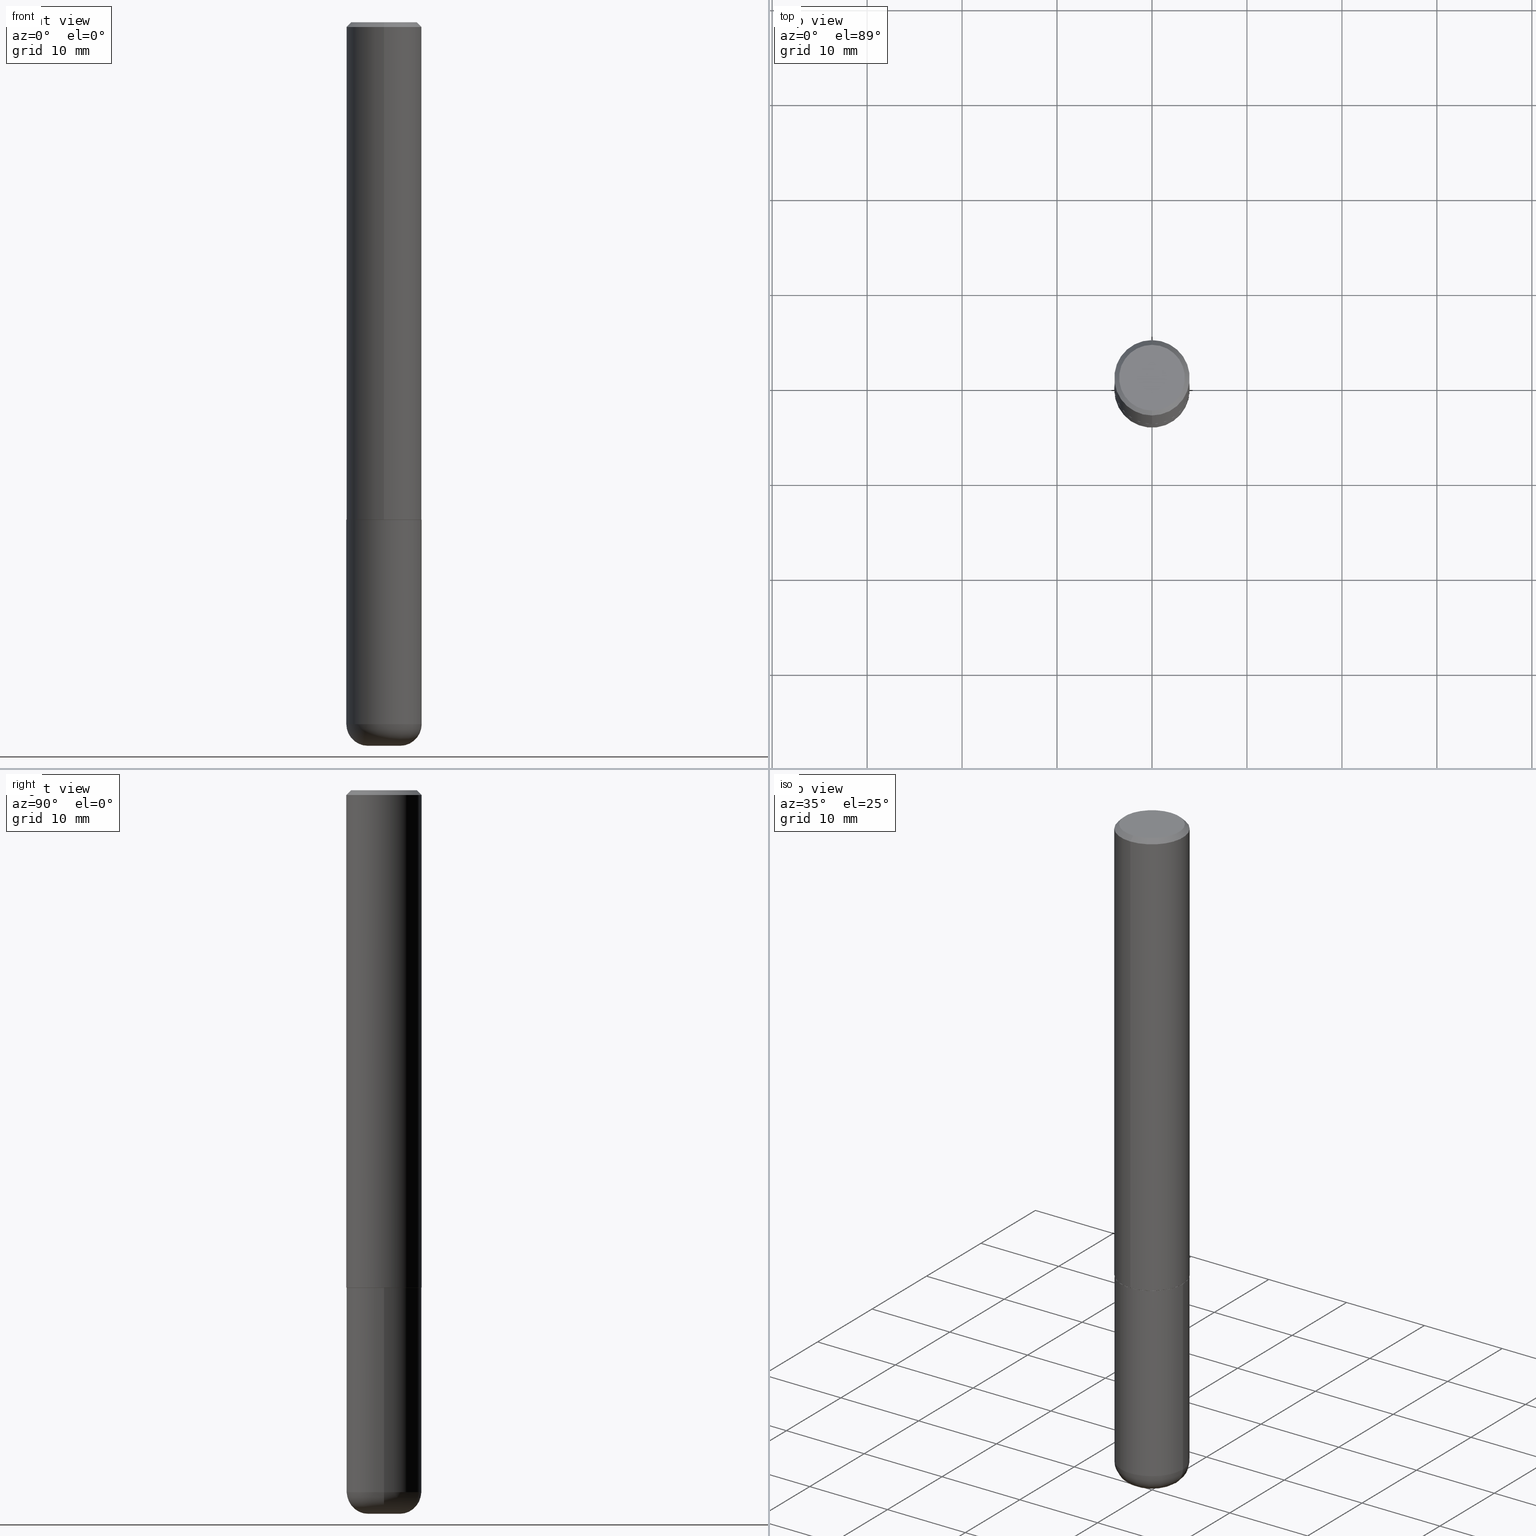
[diagram: canonical four-view strip — front | top / right | iso, engineering-drawing reading convention]
A machine part, canonical four-view strip (front | top / right | iso — engineering-drawing reading convention). The complete STEP part file that produces these views, byte-faithful:
ISO-10303-21;
HEADER;
FILE_DESCRIPTION (( 'STEP AP203' ),
    '1' );
FILE_NAME ('37467.STEP',
    '2024-03-02T02:02:21',
    ( '' ),
    ( '' ),
    'SwSTEP 2.0',
    'SolidWorks 2023',
    '' );
FILE_SCHEMA (( 'CONFIG_CONTROL_DESIGN' ));
ENDSEC;

DATA;
#1 = CC_DESIGN_DATE_AND_TIME_ASSIGNMENT ( #271, #44, ( #84 ) ) ;
#2 = AXIS2_PLACEMENT_3D ( 'NONE', #264, #302, #104 ) ;
#3 = DIRECTION ( 'NONE',  ( 1.000000000000000000, -6.982962677686265133E-15, 4.883557194083112901E-29 ) ) ;
#4 = DIRECTION ( 'NONE',  ( -2.445468806185136877E-29, 3.491481338843145188E-15, 1.000000000000000000 ) ) ;
#5 = ORIENTED_EDGE ( 'NONE', *, *, #31, .T. ) ;
#6 = DATE_AND_TIME ( #263, #141 ) ;
#7 = ORIENTED_EDGE ( 'NONE', *, *, #91, .F. ) ;
#8 = COORDINATED_UNIVERSAL_TIME_OFFSET ( 5, 0, .BEHIND. ) ;
#9 = DIRECTION ( 'NONE',  ( -2.445176063107630933E-29, 3.491900563592034843E-15, 1.000000000000000000 ) ) ;
#10 = CIRCLE ( 'NONE', #243, 0.06625000000000001721 ) ;
#11 = CARTESIAN_POINT ( 'NONE',  ( -0.06625000000000001721, -9.526848562748384337E-15, -2.999999999999999556 ) ) ;
#12 = CALENDAR_DATE ( 2024, 1, 3 ) ;
#13 = APPROVAL ( #130, 'UNSPECIFIED' ) ;
#14 = AXIS2_PLACEMENT_3D ( 'NONE', #269, #326, #32 ) ;
#15 = AXIS2_PLACEMENT_3D ( 'NONE', #43, #408, #216 ) ;
#16 = EDGE_CURVE ( 'NONE', #214, #121, #139, .T. ) ;
#17 = FACE_OUTER_BOUND ( 'NONE', #267, .T. ) ;
#18 = DIRECTION ( 'NONE',  ( -6.982962677686265922E-15, -1.000000000000000000, 3.491900563592034843E-15 ) ) ;
#19 = CLOSED_SHELL ( 'NONE', ( #206, #119, #395, #174, #317, #165 ) ) ;
#20 = DIRECTION ( 'NONE',  ( -4.937700262164378437E-15, -0.7071067811865208164, 0.7071067811865739960 ) ) ;
#21 = EDGE_LOOP ( 'NONE', ( #386, #348, #312, #257 ) ) ;
#22 = CYLINDRICAL_SURFACE ( 'NONE', #265, 0.1562500000000001388 ) ;
#23 = ORIENTED_EDGE ( 'NONE', *, *, #107, .T. ) ;
#24 = CARTESIAN_POINT ( 'NONE',  ( 5.043779412756844791E-29, -7.201180261363988578E-15, -2.062500000000000000 ) ) ;
#25 = ORIENTED_EDGE ( 'NONE', *, *, #405, .T. ) ;
#26 = DIRECTION ( 'NONE',  ( -2.445176063107630933E-29, 3.491900563592034843E-15, 1.000000000000000000 ) ) ;
#27 = VECTOR ( 'NONE', #20, 39.37007874015748854 ) ;
#28 = ORIENTED_EDGE ( 'NONE', *, *, #47, .T. ) ;
#29 = PLANE ( 'NONE',  #62 ) ;
#30 = VERTEX_POINT ( 'NONE', #103 ) ;
#31 = EDGE_CURVE ( 'NONE', #315, #384, #402, .T. ) ;
#32 = DIRECTION ( 'NONE',  ( 1.000000000000000000, -6.982962677686269077E-15, 0.000000000000000000 ) ) ;
#33 = DIRECTION ( 'NONE',  ( 2.438088387897960049E-29, -3.491481338843145188E-15, -1.000000000000000000 ) ) ;
#34 = EDGE_CURVE ( 'NONE', #30, #219, #293, .T. ) ;
#35 = DIRECTION ( 'NONE',  ( -1.000000000000000000, 6.982962677686265922E-15, -4.876176775795935793E-29 ) ) ;
#36 = CARTESIAN_POINT ( 'NONE',  ( 4.890352126215269679E-31, -6.983801127184080238E-17, -0.02000000000000003511 ) ) ;
#37 = PERSON ( 'UNSPECIFIED', 'UNSPECIFIED', 'UNSPECIFIED', ('UNSPECIFIED'), ('UNSPECIFIED'), ('UNSPECIFIED') ) ;
#38 = DATE_AND_TIME ( #368, #223 ) ;
#39 = CARTESIAN_POINT ( 'NONE',  ( -1.091087918388430659E-15, -0.1562500000000074940, -2.061499999999999666 ) ) ;
#40 = COORDINATED_UNIVERSAL_TIME_OFFSET ( 5, 0, .BEHIND. ) ;
#41 = CARTESIAN_POINT ( 'NONE',  ( 2.461313932198454415E-28, 1.426682083175070482E-14, -2.999999999999999556 ) ) ;
#42 = PRODUCT_DEFINITION_FORMATION_WITH_SPECIFIED_SOURCE ( 'ANY', '', #55, .NOT_KNOWN. ) ;
#43 = CARTESIAN_POINT ( 'NONE',  ( 7.336406418555408669E-29, -1.047444401652943478E-14, -2.999999999999999556 ) ) ;
#44 = DATE_TIME_ROLE ( 'creation_date' ) ;
#45 = AXIS2_PLACEMENT_3D ( 'NONE', #194, #201, #333 ) ;
#46 = AXIS2_PLACEMENT_3D ( 'NONE', #127, #262, #394 ) ;
#47 = EDGE_CURVE ( 'NONE', #384, #214, #397, .T. ) ;
#48 = LINE ( 'NONE', #415, #231 ) ;
#49 = FACE_OUTER_BOUND ( 'NONE', #89, .T. ) ;
#50 = ORIENTED_EDGE ( 'NONE', *, *, #47, .F. ) ;
#51 = VECTOR ( 'NONE', #400, 39.37007874015748854 ) ;
#52 = EDGE_CURVE ( 'NONE', #411, #219, #365, .T. ) ;
#53 = VECTOR ( 'NONE', #4, 39.37007874015748143 ) ;
#54 = LINE ( 'NONE', #181, #27 ) ;
#55 = PRODUCT ( '37467', '37467', '', ( #123 ) ) ;
#56 = VERTEX_POINT ( 'NONE', #11 ) ;
#57 = DIRECTION ( 'NONE',  ( -6.982962677686265922E-15, -1.000000000000000000, 3.491900563592035238E-15 ) ) ;
#58 = CC_DESIGN_DATE_AND_TIME_ASSIGNMENT ( #6, #128, ( #278 ) ) ;
#59 = DESIGN_CONTEXT ( 'detailed design', #268, 'design' ) ;
#60 = VERTEX_POINT ( 'NONE', #196 ) ;
#61 = ORIENTED_EDGE ( 'NONE', *, *, #401, .T. ) ;
#62 = AXIS2_PLACEMENT_3D ( 'NONE', #126, #120, #98 ) ;
#63 = ORIENTED_EDGE ( 'NONE', *, *, #392, .T. ) ;
#64 =( CONVERSION_BASED_UNIT ( 'INCH', #383 ) LENGTH_UNIT ( ) NAMED_UNIT ( #143 ) );
#65 = EDGE_LOOP ( 'NONE', ( #5, #28, #115, #113 ) ) ;
#66 = CARTESIAN_POINT ( 'NONE',  ( 7.116314225998749245E-29, -1.016021069603355467E-14, -2.910000000000000586 ) ) ;
#67 = CARTESIAN_POINT ( 'NONE',  ( 5.043175630159490166E-29, -7.202044912408575044E-15, -2.062500000000000444 ) ) ;
#68 = CARTESIAN_POINT ( 'NONE',  ( 0.1562500000000000000, -8.292268179752468540E-15, -2.062500000000000000 ) ) ;
#69 = CIRCLE ( 'NONE', #310, 0.1562500000000000000 ) ;
#70 = CARTESIAN_POINT ( 'NONE',  ( 4.890352126215269679E-31, -6.983801127184080238E-17, -0.02000000000000003511 ) ) ;
#71 = DIRECTION ( 'NONE',  ( -6.982962677686265922E-15, -1.000000000000000000, 3.496765431890250609E-15 ) ) ;
#72 = APPROVAL_DATE_TIME ( #101, #13 ) ;
#73 = FACE_OUTER_BOUND ( 'NONE', #246, .T. ) ;
#74 = COORDINATED_UNIVERSAL_TIME_OFFSET ( 5, 0, .BEHIND. ) ;
#75 = CARTESIAN_POINT ( 'NONE',  ( -0.1562499999999998335, -9.049987671408398127E-15, -2.910000000000000586 ) ) ;
#76 =( GEOMETRIC_REPRESENTATION_CONTEXT ( 3 ) GLOBAL_UNCERTAINTY_ASSIGNED_CONTEXT ( ( #134 ) ) GLOBAL_UNIT_ASSIGNED_CONTEXT ( ( #64, #193, #390 ) ) REPRESENTATION_CONTEXT ( 'NONE', 'WORKASPACE' ) );
#77 = CC_DESIGN_PERSON_AND_ORGANIZATION_ASSIGNMENT ( #166, #396, ( #84 ) ) ;
#78 = VECTOR ( 'NONE', #162, 39.37007874015748143 ) ;
#79 = CARTESIAN_POINT ( 'NONE',  ( 0.000000000000000000, 0.000000000000000000, 0.000000000000000000 ) ) ;
#80 = CARTESIAN_POINT ( 'NONE',  ( 1.091087918388479568E-15, 0.1562499999999999445, -0.02000000000000057981 ) ) ;
#81 = EDGE_LOOP ( 'NONE', ( #287, #354, #92, #186 ) ) ;
#82 = DIRECTION ( 'NONE',  ( -2.445468806185136597E-29, 3.491481338843145583E-15, 1.000000000000000000 ) ) ;
#83 = ORIENTED_EDGE ( 'NONE', *, *, #328, .F. ) ;
#84 = PRODUCT_DEFINITION ( 'UNKNOWN', '', #42, #59 ) ;
#85 = VECTOR ( 'NONE', #412, 39.37007874015748143 ) ;
#86 = CARTESIAN_POINT ( 'NONE',  ( 2.190428889620163364E-45, -3.128101894001013777E-31, -8.958164292007245599E-17 ) ) ;
#87 = ORIENTED_EDGE ( 'NONE', *, *, #273, .T. ) ;
#88 = PERSON_AND_ORGANIZATION ( #37, #239 ) ;
#89 = EDGE_LOOP ( 'NONE', ( #381, #418 ) ) ;
#90 = DIRECTION ( 'NONE',  ( -2.445468806185136597E-29, 3.491481338843145583E-15, 1.000000000000000000 ) ) ;
#91 = EDGE_CURVE ( 'NONE', #56, #230, #320, .T. ) ;
#92 = ORIENTED_EDGE ( 'NONE', *, *, #210, .T. ) ;
#93 = APPLICATION_PROTOCOL_DEFINITION ( 'international standard', 'config_control_design', 1994, #299 ) ;
#94 = TOROIDAL_SURFACE ( 'NONE', #102, 0.06625000000000001721, 0.08999999999999964972 ) ;
#95 = ORIENTED_EDGE ( 'NONE', *, *, #256, .F. ) ;
#96 = LINE ( 'NONE', #387, #53 ) ;
#97 = FACE_OUTER_BOUND ( 'NONE', #118, .T. ) ;
#98 = DIRECTION ( 'NONE',  ( -6.982962677686265922E-15, -1.000000000000000000, 3.491900563592034843E-15 ) ) ;
#99 = CARTESIAN_POINT ( 'NONE',  ( -1.071952812151801215E-15, -0.1562500000000000833, -0.01999999999999948694 ) ) ;
#100 = PRODUCT_RELATED_PRODUCT_CATEGORY ( 'detail', '', ( #55 ) ) ;
#101 = DATE_AND_TIME ( #137, #347 ) ;
#102 = AXIS2_PLACEMENT_3D ( 'NONE', #213, #306, #344 ) ;
#103 = CARTESIAN_POINT ( 'NONE',  ( 1.091087918388479568E-15, 0.1562499999999999445, -0.02000000000000057981 ) ) ;
#104 = DIRECTION ( 'NONE',  ( -6.982962677686265922E-15, -1.000000000000000000, 3.519288880726909138E-15 ) ) ;
#105 = EDGE_CURVE ( 'NONE', #376, #416, #197, .T. ) ;
#106 = AXIS2_PLACEMENT_3D ( 'NONE', #399, #203, #136 ) ;
#107 = EDGE_CURVE ( 'NONE', #121, #214, #131, .T. ) ;
#108 = CYLINDRICAL_SURFACE ( 'NONE', #305, 0.1562500000000001388 ) ;
#109 = VECTOR ( 'NONE', #261, 39.37007874015748143 ) ;
#110 = CC_DESIGN_SECURITY_CLASSIFICATION ( #278, ( #42 ) ) ;
#111 = DIRECTION ( 'NONE',  ( 2.445176063107630933E-29, -3.491900563592034843E-15, -1.000000000000000000 ) ) ;
#112 = DIRECTION ( 'NONE',  ( 6.982962677686265133E-15, 1.000000000000000000, -3.496765431890256920E-15 ) ) ;
#113 = ORIENTED_EDGE ( 'NONE', *, *, #226, .F. ) ;
#114 = CARTESIAN_POINT ( 'NONE',  ( -1.091087918388479962E-15, -0.1562500000000001388, 5.456094630612559989E-16 ) ) ;
#115 = ORIENTED_EDGE ( 'NONE', *, *, #107, .F. ) ;
#116 = EDGE_CURVE ( 'NONE', #411, #60, #158, .T. ) ;
#117 = LOCAL_TIME ( 21, 2, 21.00000000000000000, #8 ) ;
#118 = EDGE_LOOP ( 'NONE', ( #225, #63, #329, #217 ) ) ;
#119 = ADVANCED_FACE ( 'NONE', ( #73 ), #362, .T. ) ;
#120 = DIRECTION ( 'NONE',  ( -2.445176063107630653E-29, 3.491900563592034843E-15, 1.000000000000000000 ) ) ;
#121 = VERTEX_POINT ( 'NONE', #39 ) ;
#122 = ORIENTED_EDGE ( 'NONE', *, *, #31, .F. ) ;
#123 = MECHANICAL_CONTEXT ( 'NONE', #299, 'mechanical' ) ;
#124 = AXIS2_PLACEMENT_3D ( 'NONE', #86, #284, #18 ) ;
#125 = DIRECTION ( 'NONE',  ( 2.438088387897960049E-29, -3.491481338843145188E-15, -1.000000000000000000 ) ) ;
#126 = CARTESIAN_POINT ( 'NONE',  ( 5.043175630159489045E-29, -7.202044912408573467E-15, -2.062500000000000000 ) ) ;
#127 = CARTESIAN_POINT ( 'NONE',  ( 0.000000000000000000, 0.000000000000000000, 0.000000000000000000 ) ) ;
#128 = DATE_TIME_ROLE ( 'classification_date' ) ;
#129 = ORIENTED_EDGE ( 'NONE', *, *, #288, .F. ) ;
#130 = APPROVAL_STATUS ( 'not_yet_approved' ) ;
#131 = CIRCLE ( 'NONE', #345, 0.1562500000000002776 ) ;
#132 = CC_DESIGN_APPROVAL ( #13, ( #42 ) ) ;
#133 = CARTESIAN_POINT ( 'NONE',  ( 1.103117597267605822E-15, 0.1552499999999928104, -2.062500000000000888 ) ) ;
#134 = UNCERTAINTY_MEASURE_WITH_UNIT (LENGTH_MEASURE( 1.000000000000000082E-05 ), #64, 'distance_accuracy_value', 'NONE');
#135 = COORDINATED_UNIVERSAL_TIME_OFFSET ( 5, 0, .BEHIND. ) ;
#136 = DIRECTION ( 'NONE',  ( -1.000000000000000000, 7.105427357600996337E-15, 0.000000000000000000 ) ) ;
#137 = CALENDAR_DATE ( 2024, 1, 3 ) ;
#138 = CALENDAR_DATE ( 2024, 1, 3 ) ;
#139 = CIRCLE ( 'NONE', #276, 0.1562500000000002776 ) ;
#140 = CIRCLE ( 'NONE', #15, 0.06625000000000001721 ) ;
#141 = LOCAL_TIME ( 21, 2, 21.00000000000000000, #40 ) ;
#142 = DIRECTION ( 'NONE',  ( -2.445468806185136597E-29, 3.491481338843145583E-15, 1.000000000000000000 ) ) ;
#143 = DIMENSIONAL_EXPONENTS ( 1.000000000000000000, 0.000000000000000000, 0.000000000000000000, 0.000000000000000000, 0.000000000000000000, 0.000000000000000000, 0.000000000000000000 ) ;
#144 = AXIS2_PLACEMENT_3D ( 'NONE', #360, #26, #289 ) ;
#145 = DIRECTION ( 'NONE',  ( -2.445468806185136597E-29, 3.491481338843145583E-15, 1.000000000000000000 ) ) ;
#146 = APPROVAL ( #323, 'UNSPECIFIED' ) ;
#147 = ORIENTED_EDGE ( 'NONE', *, *, #303, .F. ) ;
#148 = CARTESIAN_POINT ( 'NONE',  ( 0.06625000000000001721, -1.093706529392614979E-14, -2.999999999999999556 ) ) ;
#149 = ORIENTED_EDGE ( 'NONE', *, *, #288, .T. ) ;
#150 = CARTESIAN_POINT ( 'NONE',  ( 9.514286648347545493E-16, 0.1362500000000001210, -5.205622732494513937E-16 ) ) ;
#151 = EDGE_LOOP ( 'NONE', ( #221, #212, #192, #318 ) ) ;
#152 = CONICAL_SURFACE ( 'NONE', #144, 0.1552499999999999991, 0.7853981633974141952 ) ;
#153 = CARTESIAN_POINT ( 'NONE',  ( 7.336406418555408669E-29, -1.047444401652943478E-14, -2.999999999999999556 ) ) ;
#154 = ORIENTED_EDGE ( 'NONE', *, *, #16, .F. ) ;
#155 = APPLICATION_PROTOCOL_DEFINITION ( 'international standard', 'config_control_design', 1994, #268 ) ;
#156 = ORIENTED_EDGE ( 'NONE', *, *, #105, .T. ) ;
#157 = DIRECTION ( 'NONE',  ( -6.982962677686265922E-15, -1.000000000000000000, 3.519288880726909138E-15 ) ) ;
#158 = CIRCLE ( 'NONE', #45, 0.1362500000000001210 ) ;
#159 = CARTESIAN_POINT ( 'NONE',  ( -0.1562500000000000000, -7.570472454073614293E-15, -2.062500000000000000 ) ) ;
#160 = CIRCLE ( 'NONE', #321, 0.1562500000000000000 ) ;
#161 = ADVANCED_FACE ( 'NONE', ( #356 ), #330, .T. ) ;
#162 = DIRECTION ( 'NONE',  ( -4.851104656540957175E-15, -0.7071067811865490160, -0.7071067811865460184 ) ) ;
#163 = CARTESIAN_POINT ( 'NONE',  ( -1.003347832174086672E-15, -0.1362500000000001210, 3.861898088693426789E-16 ) ) ;
#164 = DIRECTION ( 'NONE',  ( -6.982962677686265922E-15, -1.000000000000000000, 3.496765431890250609E-15 ) ) ;
#165 = ADVANCED_FACE ( 'NONE', ( #391 ), #358, .T. ) ;
#166 = PERSON_AND_ORGANIZATION ( #37, #239 ) ;
#167 = CARTESIAN_POINT ( 'NONE',  ( 5.040730454096381281E-29, -7.198553011844980434E-15, -2.061500000000000110 ) ) ;
#168 = APPROVAL_ROLE ( '' ) ;
#169 = LOCAL_TIME ( 21, 2, 21.00000000000000000, #237 ) ;
#170 = FACE_OUTER_BOUND ( 'NONE', #322, .T. ) ;
#171 = ADVANCED_FACE ( 'NONE', ( #170 ), #407, .T. ) ;
#172 = PERSON_AND_ORGANIZATION ( #37, #239 ) ;
#173 = AXIS2_PLACEMENT_3D ( 'NONE', #228, #292, #3 ) ;
#174 = ADVANCED_FACE ( 'NONE', ( #97 ), #296, .T. ) ;
#175 = AXIS2_PLACEMENT_3D ( 'NONE', #150, #236, #178 ) ;
#176 = CARTESIAN_POINT ( 'NONE',  ( 0.06625000000000001721, -1.062283197343026968E-14, -2.910000000000000586 ) ) ;
#177 = ORIENTED_EDGE ( 'NONE', *, *, #377, .F. ) ;
#178 = DIRECTION ( 'NONE',  ( 6.982962677686265922E-15, 1.000000000000000000, -3.491900563592034843E-15 ) ) ;
#179 = ADVANCED_FACE ( 'NONE', ( #332 ), #380, .T. ) ;
#180 = MANIFOLD_SOLID_BREP ( 'Body-Move/Copy2[1]', #19 ) ;
#181 = CARTESIAN_POINT ( 'NONE',  ( -1.084104955710742475E-15, -0.1552500000000072156, -2.062500000000000000 ) ) ;
#182 = VERTEX_POINT ( 'NONE', #379 ) ;
#183 = AXIS2_PLACEMENT_3D ( 'NONE', #325, #253, #189 ) ;
#184 = DIRECTION ( 'NONE',  ( 4.937700262164540942E-15, 0.7071067811865441310, -0.7071067811865509034 ) ) ;
#185 = ADVANCED_FACE ( 'NONE', ( #49 ), #205, .F. ) ;
#186 = ORIENTED_EDGE ( 'NONE', *, *, #34, .F. ) ;
#187 = CARTESIAN_POINT ( 'NONE',  ( 4.890352126215269679E-31, -6.983801127184080238E-17, -0.02000000000000003511 ) ) ;
#188 = ORIENTED_EDGE ( 'NONE', *, *, #273, .F. ) ;
#189 = DIRECTION ( 'NONE',  ( 1.000000000000000000, 0.000000000000000000, 0.000000000000000000 ) ) ;
#190 = ORIENTED_EDGE ( 'NONE', *, *, #328, .T. ) ;
#191 = AXIS2_PLACEMENT_3D ( 'NONE', #195, #33, #295 ) ;
#192 = ORIENTED_EDGE ( 'NONE', *, *, #338, .T. ) ;
#193 =( NAMED_UNIT ( * ) PLANE_ANGLE_UNIT ( ) SI_UNIT ( $, .RADIAN. ) );
#194 = CARTESIAN_POINT ( 'NONE',  ( 2.190428889620163364E-45, -3.128101894001013777E-31, -8.958164292007245599E-17 ) ) ;
#195 = CARTESIAN_POINT ( 'NONE',  ( 5.043779412756844791E-29, -7.201180261363988578E-15, -2.062500000000000000 ) ) ;
#196 = CARTESIAN_POINT ( 'NONE',  ( 1.021258291611617059E-15, 0.1362500000000001210, -5.653530947094876156E-16 ) ) ;
#197 = CIRCLE ( 'NONE', #14, 0.1562500000000000000 ) ;
#198 = AXIS2_PLACEMENT_3D ( 'NONE', #209, #82, #241 ) ;
#199 = FACE_OUTER_BOUND ( 'NONE', #65, .T. ) ;
#200 = DIRECTION ( 'NONE',  ( -2.445176063107630933E-29, 3.491900563592034843E-15, 1.000000000000000000 ) ) ;
#201 = DIRECTION ( 'NONE',  ( -2.445176063107630933E-29, 3.491900563592034843E-15, 1.000000000000000000 ) ) ;
#202 = DATE_AND_TIME ( #138, #169 ) ;
#203 = DIRECTION ( 'NONE',  ( 7.105427357601001859E-15, 1.000000000000000000, -3.491481338843145583E-15 ) ) ;
#204 = APPROVAL_ROLE ( '' ) ;
#205 = PLANE ( 'NONE',  #175 ) ;
#206 = ADVANCED_FACE ( 'NONE', ( #375 ), #274, .T. ) ;
#207 = PERSON_AND_ORGANIZATION ( #37, #239 ) ;
#208 = CIRCLE ( 'NONE', #388, 0.1562500000000000000 ) ;
#209 = CARTESIAN_POINT ( 'NONE',  ( 0.000000000000000000, 0.000000000000000000, 0.000000000000000000 ) ) ;
#210 = EDGE_CURVE ( 'NONE', #121, #219, #343, .T. ) ;
#211 = DIRECTION ( 'NONE',  ( -2.445176063107630933E-29, 3.491900563592034843E-15, 1.000000000000000000 ) ) ;
#212 = ORIENTED_EDGE ( 'NONE', *, *, #260, .F. ) ;
#213 = CARTESIAN_POINT ( 'NONE',  ( 7.116314225998749245E-29, -1.016021069603355467E-14, -2.910000000000000586 ) ) ;
#214 = VERTEX_POINT ( 'NONE', #369 ) ;
#215 = APPROVAL_PERSON_ORGANIZATION ( #235, #250, #204 ) ;
#216 = DIRECTION ( 'NONE',  ( 1.000000000000000000, -6.982962677686253300E-15, 0.000000000000000000 ) ) ;
#217 = ORIENTED_EDGE ( 'NONE', *, *, #105, .F. ) ;
#218 = DIRECTION ( 'NONE',  ( 1.000000000000000000, -6.982962677686262766E-15, 0.000000000000000000 ) ) ;
#219 = VERTEX_POINT ( 'NONE', #309 ) ;
#220 =( LENGTH_UNIT ( ) NAMED_UNIT ( * ) SI_UNIT ( $, .METRE. ) );
#221 = ORIENTED_EDGE ( 'NONE', *, *, #52, .F. ) ;
#222 = CIRCLE ( 'NONE', #258, 0.1562500000000000000 ) ;
#223 = LOCAL_TIME ( 21, 2, 21.00000000000000000, #135 ) ;
#224 = DIRECTION ( 'NONE',  ( 1.000000000000000000, -6.982962677686253300E-15, 0.000000000000000000 ) ) ;
#225 = ORIENTED_EDGE ( 'NONE', *, *, #401, .F. ) ;
#226 = EDGE_CURVE ( 'NONE', #315, #121, #54, .T. ) ;
#227 = PERSON_AND_ORGANIZATION ( #37, #239 ) ;
#228 = CARTESIAN_POINT ( 'NONE',  ( 7.116314225998749245E-29, -1.016021069603355467E-14, -2.910000000000000586 ) ) ;
#229 = CARTESIAN_POINT ( 'NONE',  ( 1.110223024625157329E-15, 0.1562500000000001388, -5.456094630612559989E-16 ) ) ;
#230 = VERTEX_POINT ( 'NONE', #75 ) ;
#231 = VECTOR ( 'NONE', #337, 39.37007874015748143 ) ;
#232 = APPROVAL_PERSON_ORGANIZATION ( #207, #13, #168 ) ;
#233 = DIRECTION ( 'NONE',  ( -2.445176063107630933E-29, 3.491900563592034843E-15, 1.000000000000000000 ) ) ;
#234 = DIRECTION ( 'NONE',  ( -6.982962677686265133E-15, -1.000000000000000000, 3.496765431890256920E-15 ) ) ;
#235 = PERSON_AND_ORGANIZATION ( #37, #239 ) ;
#236 = DIRECTION ( 'NONE',  ( 2.445176063107630653E-29, -3.491900563592034843E-15, -1.000000000000000000 ) ) ;
#237 = COORDINATED_UNIVERSAL_TIME_OFFSET ( 5, 0, .BEHIND. ) ;
#238 = CLOSED_SHELL ( 'NONE', ( #374, #350, #179, #161, #340, #171, #409, #185 ) ) ;
#239 = ORGANIZATION ( 'UNSPECIFIED', 'UNSPECIFIED', '' ) ;
#240 = CC_DESIGN_APPROVAL ( #146, ( #84 ) ) ;
#241 = DIRECTION ( 'NONE',  ( 1.000000000000000000, -6.982962677686266711E-15, 4.876176775795936353E-29 ) ) ;
#242 = EDGE_CURVE ( 'NONE', #182, #416, #48, .T. ) ;
#243 = AXIS2_PLACEMENT_3D ( 'NONE', #153, #90, #224 ) ;
#244 = DIRECTION ( 'NONE',  ( -6.982962677686265133E-15, -1.000000000000000000, 3.496765431890256920E-15 ) ) ;
#245 = DIRECTION ( 'NONE',  ( 1.000000000000000000, -6.982962677686273810E-15, 0.000000000000000000 ) ) ;
#246 = EDGE_LOOP ( 'NONE', ( #25, #286, #83, #129 ) ) ;
#247 = DIRECTION ( 'NONE',  ( -2.445176063107630933E-29, 3.491900563592034843E-15, 1.000000000000000000 ) ) ;
#248 = AXIS2_PLACEMENT_3D ( 'NONE', #176, #275, #245 ) ;
#249 = VERTEX_POINT ( 'NONE', #148 ) ;
#250 = APPROVAL ( #364, 'UNSPECIFIED' ) ;
#251 = PLANE ( 'NONE',  #191 ) ;
#252 = EDGE_LOOP ( 'NONE', ( #352, #188 ) ) ;
#253 = DIRECTION ( 'NONE',  ( 0.000000000000000000, 0.000000000000000000, 1.000000000000000000 ) ) ;
#254 = ORIENTED_EDGE ( 'NONE', *, *, #226, .T. ) ;
#255 = DIRECTION ( 'NONE',  ( -2.445176063107630933E-29, 3.491900563592034843E-15, 1.000000000000000000 ) ) ;
#256 = EDGE_CURVE ( 'NONE', #416, #376, #160, .T. ) ;
#257 = ORIENTED_EDGE ( 'NONE', *, *, #338, .F. ) ;
#258 = AXIS2_PLACEMENT_3D ( 'NONE', #187, #410, #244 ) ;
#259 = CARTESIAN_POINT ( 'NONE',  ( 5.040730454096381281E-29, -7.198553011844980434E-15, -2.061500000000000110 ) ) ;
#260 = EDGE_CURVE ( 'NONE', #60, #411, #277, .T. ) ;
#261 = DIRECTION ( 'NONE',  ( -2.445176063107631214E-29, 3.491900563592034843E-15, 1.000000000000000000 ) ) ;
#262 = DIRECTION ( 'NONE',  ( -2.445468806185136597E-29, 3.491481338843145583E-15, 1.000000000000000000 ) ) ;
#263 = CALENDAR_DATE ( 2024, 1, 3 ) ;
#264 = CARTESIAN_POINT ( 'NONE',  ( 5.043175630159490166E-29, -7.202044912408575044E-15, -2.062500000000000444 ) ) ;
#265 = AXIS2_PLACEMENT_3D ( 'NONE', #281, #247, #57 ) ;
#266 = SECURITY_CLASSIFICATION_LEVEL ( 'unclassified' ) ;
#267 = EDGE_LOOP ( 'NONE', ( #7, #87, #149, #283 ) ) ;
#268 = APPLICATION_CONTEXT ( 'configuration controlled 3d designs of mechanical parts and assemblies' ) ;
#269 = CARTESIAN_POINT ( 'NONE',  ( 5.043779412756844791E-29, -7.201180261363988578E-15, -2.062500000000000000 ) ) ;
#270 = PERSON_AND_ORGANIZATION ( #37, #239 ) ;
#271 = DATE_AND_TIME ( #12, #117 ) ;
#272 = AXIS2_PLACEMENT_3D ( 'NONE', #67, #200, #157 ) ;
#273 = EDGE_CURVE ( 'NONE', #56, #249, #140, .T. ) ;
#274 = CYLINDRICAL_SURFACE ( 'NONE', #198, 0.1562500000000000000 ) ;
#275 = DIRECTION ( 'NONE',  ( -6.982962677686266711E-15, -1.000000000000000000, 3.491481338843145583E-15 ) ) ;
#276 = AXIS2_PLACEMENT_3D ( 'NONE', #259, #233, #164 ) ;
#277 = CIRCLE ( 'NONE', #124, 0.1362500000000001210 ) ;
#278 = SECURITY_CLASSIFICATION ( '', '', #266 ) ;
#279 = DIRECTION ( 'NONE',  ( 1.000000000000000000, -6.982962677686269077E-15, 0.000000000000000000 ) ) ;
#280 = EDGE_LOOP ( 'NONE', ( #122, #177 ) ) ;
#281 = CARTESIAN_POINT ( 'NONE',  ( 0.000000000000000000, 0.000000000000000000, 0.000000000000000000 ) ) ;
#282 = CC_DESIGN_PERSON_AND_ORGANIZATION_ASSIGNMENT ( #301, #339, ( #278 ) ) ;
#283 = ORIENTED_EDGE ( 'NONE', *, *, #392, .F. ) ;
#284 = DIRECTION ( 'NONE',  ( -2.445176063107630933E-29, 3.491900563592034843E-15, 1.000000000000000000 ) ) ;
#285 = CIRCLE ( 'NONE', #248, 0.08999999999999964972 ) ;
#286 = ORIENTED_EDGE ( 'NONE', *, *, #91, .T. ) ;
#287 = ORIENTED_EDGE ( 'NONE', *, *, #366, .F. ) ;
#288 = EDGE_CURVE ( 'NONE', #249, #182, #285, .T. ) ;
#289 = DIRECTION ( 'NONE',  ( -6.982962677686265922E-15, -1.000000000000000000, 3.519288880726909138E-15 ) ) ;
#290 = ORIENTED_EDGE ( 'NONE', *, *, #377, .T. ) ;
#291 = DIRECTION ( 'NONE',  ( -2.445468806185136597E-29, 3.491481338843145583E-15, 1.000000000000000000 ) ) ;
#292 = DIRECTION ( 'NONE',  ( -2.445468806185136597E-29, 3.491481338843145583E-15, 1.000000000000000000 ) ) ;
#293 = CIRCLE ( 'NONE', #378, 0.1562500000000000000 ) ;
#294 = APPROVAL_PERSON_ORGANIZATION ( #227, #146, #404 ) ;
#295 = DIRECTION ( 'NONE',  ( -1.000000000000000000, 6.982962677686265922E-15, -4.876176775795935793E-29 ) ) ;
#296 = CYLINDRICAL_SURFACE ( 'NONE', #46, 0.1562500000000000000 ) ;
#297 = DIRECTION ( 'NONE',  ( -2.445176063107630933E-29, 3.491900563592034843E-15, 1.000000000000000000 ) ) ;
#298 = PERSON_AND_ORGANIZATION_ROLE ( 'design_supplier' ) ;
#299 = APPLICATION_CONTEXT ( 'configuration controlled 3d designs of mechanical parts and assemblies' ) ;
#300 = ORIENTED_EDGE ( 'NONE', *, *, #242, .F. ) ;
#301 = PERSON_AND_ORGANIZATION ( #37, #239 ) ;
#302 = DIRECTION ( 'NONE',  ( -2.445176063107630933E-29, 3.491900563592034843E-15, 1.000000000000000000 ) ) ;
#303 = EDGE_CURVE ( 'NONE', #219, #30, #222, .T. ) ;
#304 = APPROVAL_DATE_TIME ( #38, #146 ) ;
#305 = AXIS2_PLACEMENT_3D ( 'NONE', #79, #211, #313 ) ;
#306 = DIRECTION ( 'NONE',  ( -2.445468806185136597E-29, 3.491481338843145583E-15, 1.000000000000000000 ) ) ;
#307 = EDGE_LOOP ( 'NONE', ( #351, #156 ) ) ;
#308 = CARTESIAN_POINT ( 'NONE',  ( -1.084104955710742475E-15, -0.1552500000000072156, -2.062500000000000000 ) ) ;
#309 = CARTESIAN_POINT ( 'NONE',  ( -1.071952812151801215E-15, -0.1562500000000000833, -0.01999999999999948694 ) ) ;
#310 = AXIS2_PLACEMENT_3D ( 'NONE', #373, #142, #406 ) ;
#311 = CC_DESIGN_APPROVAL ( #250, ( #278 ) ) ;
#312 = ORIENTED_EDGE ( 'NONE', *, *, #303, .T. ) ;
#313 = DIRECTION ( 'NONE',  ( -6.982962677686265922E-15, -1.000000000000000000, 3.491900563592035238E-15 ) ) ;
#314 = CC_DESIGN_PERSON_AND_ORGANIZATION_ASSIGNMENT ( #88, #355, ( #55 ) ) ;
#315 = VERTEX_POINT ( 'NONE', #308 ) ;
#316 = LINE ( 'NONE', #229, #109 ) ;
#317 = ADVANCED_FACE ( 'NONE', ( #17 ), #94, .T. ) ;
#318 = ORIENTED_EDGE ( 'NONE', *, *, #34, .T. ) ;
#319 = FACE_OUTER_BOUND ( 'NONE', #280, .T. ) ;
#320 = CIRCLE ( 'NONE', #106, 0.08999999999999964972 ) ;
#321 = AXIS2_PLACEMENT_3D ( 'NONE', #24, #145, #279 ) ;
#322 = EDGE_LOOP ( 'NONE', ( #50, #290, #254, #154 ) ) ;
#323 = APPROVAL_STATUS ( 'not_yet_approved' ) ;
#324 = ORIENTED_EDGE ( 'NONE', *, *, #210, .F. ) ;
#325 = CARTESIAN_POINT ( 'NONE',  ( 0.000000000000000000, 0.000000000000000000, 0.000000000000000000 ) ) ;
#326 = DIRECTION ( 'NONE',  ( -2.445468806185136597E-29, 3.491481338843145583E-15, 1.000000000000000000 ) ) ;
#327 = CARTESIAN_POINT ( 'NONE',  ( 1.106670310946407312E-15, 0.1552499999999928104, -2.062500000000000888 ) ) ;
#328 = EDGE_CURVE ( 'NONE', #182, #230, #69, .T. ) ;
#329 = ORIENTED_EDGE ( 'NONE', *, *, #242, .T. ) ;
#330 = CONICAL_SURFACE ( 'NONE', #331, 0.1562500000000000000, 0.7853981633974469467 ) ;
#331 = AXIS2_PLACEMENT_3D ( 'NONE', #361, #335, #367 ) ;
#332 = FACE_OUTER_BOUND ( 'NONE', #21, .T. ) ;
#333 = DIRECTION ( 'NONE',  ( -6.982962677686265922E-15, -1.000000000000000000, 3.491900563592034843E-15 ) ) ;
#334 = MANIFOLD_SOLID_BREP ( 'Body-Move/Copy2[2]', #238 ) ;
#335 = DIRECTION ( 'NONE',  ( 2.445176063107630933E-29, -3.491900563592034843E-15, -1.000000000000000000 ) ) ;
#336 = APPROVAL_DATE_TIME ( #202, #250 ) ;
#337 = DIRECTION ( 'NONE',  ( -2.445468806185136877E-29, 3.491481338843145188E-15, 1.000000000000000000 ) ) ;
#338 = EDGE_CURVE ( 'NONE', #60, #30, #372, .T. ) ;
#339 = PERSON_AND_ORGANIZATION_ROLE ( 'classification_officer' ) ;
#340 = ADVANCED_FACE ( 'NONE', ( #342 ), #108, .T. ) ;
#341 = VECTOR ( 'NONE', #184, 39.37007874015748143 ) ;
#342 = FACE_OUTER_BOUND ( 'NONE', #81, .T. ) ;
#343 = LINE ( 'NONE', #114, #85 ) ;
#344 = DIRECTION ( 'NONE',  ( 1.000000000000000000, -6.982962677686265133E-15, 4.883557194083112901E-29 ) ) ;
#345 = AXIS2_PLACEMENT_3D ( 'NONE', #167, #9, #71 ) ;
#346 = AXIS2_PLACEMENT_3D ( 'NONE', #41, #125, #35 ) ;
#347 = LOCAL_TIME ( 21, 2, 21.00000000000000000, #74 ) ;
#348 = ORIENTED_EDGE ( 'NONE', *, *, #52, .T. ) ;
#349 = FACE_OUTER_BOUND ( 'NONE', #417, .T. ) ;
#350 = ADVANCED_FACE ( 'NONE', ( #349 ), #22, .T. ) ;
#351 = ORIENTED_EDGE ( 'NONE', *, *, #256, .T. ) ;
#352 = ORIENTED_EDGE ( 'NONE', *, *, #405, .F. ) ;
#353 = AXIS2_PLACEMENT_3D ( 'NONE', #36, #111, #112 ) ;
#354 = ORIENTED_EDGE ( 'NONE', *, *, #16, .T. ) ;
#355 = PERSON_AND_ORGANIZATION_ROLE ( 'design_owner' ) ;
#356 = FACE_OUTER_BOUND ( 'NONE', #151, .T. ) ;
#357 = DIRECTION ( 'NONE',  ( -6.982962677686265922E-15, -1.000000000000000000, 3.519288880726909138E-15 ) ) ;
#358 = PLANE ( 'NONE',  #346 ) ;
#359 = CC_DESIGN_PERSON_AND_ORGANIZATION_ASSIGNMENT ( #172, #298, ( #42 ) ) ;
#360 = CARTESIAN_POINT ( 'NONE',  ( 5.043175630159490166E-29, -7.202044912408575044E-15, -2.062500000000000444 ) ) ;
#361 = CARTESIAN_POINT ( 'NONE',  ( 4.890352126215269679E-31, -6.983801127184080238E-17, -0.02000000000000003511 ) ) ;
#362 = TOROIDAL_SURFACE ( 'NONE', #173, 0.06625000000000001721, 0.08999999999999964972 ) ;
#363 = AXIS2_PLACEMENT_3D ( 'NONE', #385, #255, #357 ) ;
#364 = APPROVAL_STATUS ( 'not_yet_approved' ) ;
#365 = LINE ( 'NONE', #99, #78 ) ;
#366 = EDGE_CURVE ( 'NONE', #214, #30, #316, .T. ) ;
#367 = DIRECTION ( 'NONE',  ( 6.982962677686265133E-15, 1.000000000000000000, -3.496765431890256920E-15 ) ) ;
#368 = CALENDAR_DATE ( 2024, 1, 3 ) ;
#369 = CARTESIAN_POINT ( 'NONE',  ( 1.110223024625183362E-15, 0.1562499999999930611, -2.061500000000000554 ) ) ;
#370 = PERSON_AND_ORGANIZATION_ROLE ( 'creator' ) ;
#371 = PRODUCT_DEFINITION_SHAPE ( 'NONE', 'NONE',  #84 ) ;
#372 = LINE ( 'NONE', #80, #341 ) ;
#373 = CARTESIAN_POINT ( 'NONE',  ( 7.116314225998749245E-29, -1.016021069603355467E-14, -2.910000000000000586 ) ) ;
#374 = ADVANCED_FACE ( 'NONE', ( #199 ), #152, .T. ) ;
#375 = FACE_OUTER_BOUND ( 'NONE', #413, .T. ) ;
#376 = VERTEX_POINT ( 'NONE', #159 ) ;
#377 = EDGE_CURVE ( 'NONE', #384, #315, #403, .T. ) ;
#378 = AXIS2_PLACEMENT_3D ( 'NONE', #70, #297, #234 ) ;
#379 = CARTESIAN_POINT ( 'NONE',  ( 0.1562499999999998335, -1.125129861442203147E-14, -2.910000000000000586 ) ) ;
#380 = CONICAL_SURFACE ( 'NONE', #353, 0.1562500000000000000, 0.7853981633974469467 ) ;
#381 = ORIENTED_EDGE ( 'NONE', *, *, #260, .T. ) ;
#382 = ADVANCED_BREP_SHAPE_REPRESENTATION ( '37467', ( #180, #334, #183 ), #76 ) ;
#383 = LENGTH_MEASURE_WITH_UNIT ( LENGTH_MEASURE( 0.02539999999999999897 ), #220 );
#384 = VERTEX_POINT ( 'NONE', #327 ) ;
#385 = CARTESIAN_POINT ( 'NONE',  ( 5.043175630159490166E-29, -7.202044912408575044E-15, -2.062500000000000444 ) ) ;
#386 = ORIENTED_EDGE ( 'NONE', *, *, #116, .F. ) ;
#387 = CARTESIAN_POINT ( 'NONE',  ( -0.1562500000000000000, 1.110223024625156540E-15, -7.685836078523291160E-30 ) ) ;
#388 = AXIS2_PLACEMENT_3D ( 'NONE', #66, #291, #218 ) ;
#389 = ORIENTED_EDGE ( 'NONE', *, *, #366, .T. ) ;
#390 =( NAMED_UNIT ( * ) SI_UNIT ( $, .STERADIAN. ) SOLID_ANGLE_UNIT ( ) );
#391 = FACE_OUTER_BOUND ( 'NONE', #252, .T. ) ;
#392 = EDGE_CURVE ( 'NONE', #230, #182, #208, .T. ) ;
#393 = FACE_OUTER_BOUND ( 'NONE', #307, .T. ) ;
#394 = DIRECTION ( 'NONE',  ( 1.000000000000000000, -6.982962677686266711E-15, 4.876176775795936353E-29 ) ) ;
#395 = ADVANCED_FACE ( 'NONE', ( #393 ), #251, .F. ) ;
#396 = PERSON_AND_ORGANIZATION_ROLE ( 'creator' ) ;
#397 = LINE ( 'NONE', #133, #51 ) ;
#398 = SHAPE_DEFINITION_REPRESENTATION ( #371, #382 ) ;
#399 = CARTESIAN_POINT ( 'NONE',  ( -0.06625000000000001721, -9.689476133592487284E-15, -2.910000000000000586 ) ) ;
#400 = DIRECTION ( 'NONE',  ( 5.024295867787889629E-15, 0.7071067811865257013, 0.7071067811865691111 ) ) ;
#401 = EDGE_CURVE ( 'NONE', #230, #376, #96, .T. ) ;
#402 = CIRCLE ( 'NONE', #2, 0.1552499999999999991 ) ;
#403 = CIRCLE ( 'NONE', #363, 0.1552499999999999991 ) ;
#404 = APPROVAL_ROLE ( '' ) ;
#405 = EDGE_CURVE ( 'NONE', #249, #56, #10, .T. ) ;
#406 = DIRECTION ( 'NONE',  ( 1.000000000000000000, -6.982962677686262766E-15, 0.000000000000000000 ) ) ;
#407 = CONICAL_SURFACE ( 'NONE', #272, 0.1552499999999999991, 0.7853981633974141952 ) ;
#408 = DIRECTION ( 'NONE',  ( -2.445468806185136597E-29, 3.491481338843145583E-15, 1.000000000000000000 ) ) ;
#409 = ADVANCED_FACE ( 'NONE', ( #319 ), #29, .F. ) ;
#410 = DIRECTION ( 'NONE',  ( -2.445176063107630933E-29, 3.491900563592034843E-15, 1.000000000000000000 ) ) ;
#411 = VERTEX_POINT ( 'NONE', #163 ) ;
#412 = DIRECTION ( 'NONE',  ( -2.445176063107631214E-29, 3.491900563592034843E-15, 1.000000000000000000 ) ) ;
#413 = EDGE_LOOP ( 'NONE', ( #190, #61, #95, #300 ) ) ;
#414 = CC_DESIGN_PERSON_AND_ORGANIZATION_ASSIGNMENT ( #270, #370, ( #42 ) ) ;
#415 = CARTESIAN_POINT ( 'NONE',  ( 0.1562500000000000000, -1.091087918388479174E-15, 7.619026212181150377E-30 ) ) ;
#416 = VERTEX_POINT ( 'NONE', #68 ) ;
#417 = EDGE_LOOP ( 'NONE', ( #23, #389, #147, #324 ) ) ;
#418 = ORIENTED_EDGE ( 'NONE', *, *, #116, .T. ) ;
ENDSEC;
END-ISO-10303-21;
